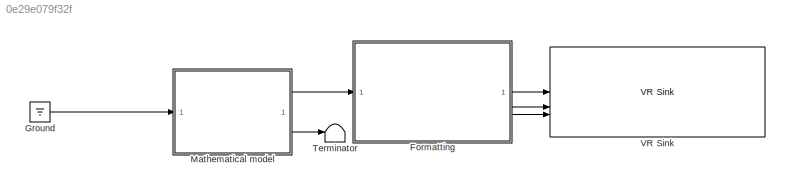
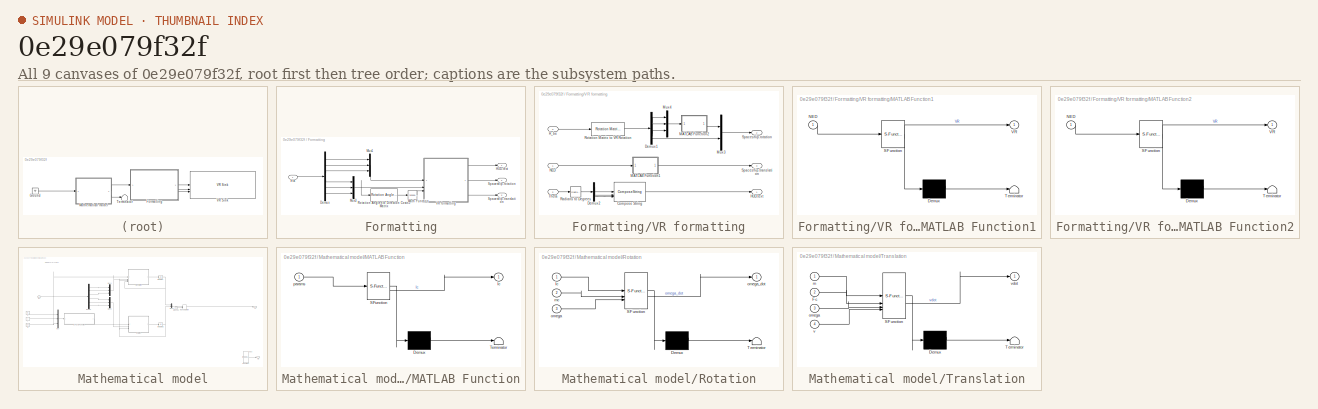
[diagram: thumbnail index - all 9 canvases of the model, root first then tree order]
MODEL slx_0e29e079f32f
KIND model
CONFIG AbsTol = auto
CONFIG EnableMultiTasking = on
CONFIG FixedStep = auto
CONFIG MaxStep = auto
CONFIG MinStep = auto
CONFIG RelTol = 1e-3
CONFIG SampleTimeConstraint = Unconstrained
CONFIG SolverName = ode45
CONFIG StartTime = 0.0
CONFIG StopTime = 30
BLOCK [SubSystem] Formatting
BLOCK [Demux] Formatting/Demux
  Outputs = 6
BLOCK [Outport] Formatting/HUD.text
BLOCK [Math] Formatting/Math Function
  Operator = transpose
BLOCK [Mux] Formatting/Mux1
  DisplayOption = bar
  Inputs = 3
BLOCK [Mux] Formatting/Mux3
  DisplayOption = bar
  Inputs = 3
BLOCK [Reference] Formatting/Rotation Angles to Direction Cosine Matrix  REF=sharedtransform/Rotation Angles to
Direction Cosine Matrix
  AttributesFormatString = Rotation Order: %<rotationOrder>
  SourceBlock = sharedtransform/Rotation Angles to\nDirection Cosine Matrix
  SourceType = Ang2DCM
BLOCK [Outport] Formatting/Spaceship.rotation
  Port = 2
BLOCK [Outport] Formatting/Spaceship.translation
  Port = 3
BLOCK [SubSystem] Formatting/VR formatting
BLOCK [ComposeString] Formatting/VR formatting/Compose String
  Format = 'Roll    : %7.2f deg\nPitch   : %7.2f deg\nYaw     : %7.2f deg'
BLOCK [Demux] Formatting/VR formatting/Demux1
BLOCK [Demux] Formatting/VR formatting/Demux2
  Outputs = 3
BLOCK [Outport] Formatting/VR formatting/HUD.text
BLOCK [SubSystem] Formatting/VR formatting/MATLAB Function1
  ErrorFcn = Stateflow.Translate.translate
  PermitHierarchicalResolution = ExplicitOnly
  SFBlockType = MATLAB Function
  TreatAsAtomicUnit = on
BLOCK [Demux] Formatting/VR formatting/MATLAB Function1/ Demux 
  Outputs = 1
BLOCK [S-Function] Formatting/VR formatting/MATLAB Function1/ SFunction 
  EnableBusSupport = on
  FunctionName = sf_sfun
  PortCounts = [1 2]
  SFcnIsStateOwnerBlock = off
  SFunctionDeploymentMode = off
  Tag = Stateflow S-Function 5
BLOCK [Terminator] Formatting/VR formatting/MATLAB Function1/ Terminator 
BLOCK [Inport] Formatting/VR formatting/MATLAB Function1/NED
BLOCK [Outport] Formatting/VR formatting/MATLAB Function1/VR
BLOCK [SubSystem] Formatting/VR formatting/MATLAB Function2
  ErrorFcn = Stateflow.Translate.translate
  PermitHierarchicalResolution = ExplicitOnly
  SFBlockType = MATLAB Function
  TreatAsAtomicUnit = on
BLOCK [Demux] Formatting/VR formatting/MATLAB Function2/ Demux 
  Outputs = 1
BLOCK [S-Function] Formatting/VR formatting/MATLAB Function2/ SFunction 
  EnableBusSupport = on
  FunctionName = sf_sfun
  PortCounts = [1 2]
  SFcnIsStateOwnerBlock = off
  SFunctionDeploymentMode = off
  Tag = Stateflow S-Function 6
BLOCK [Terminator] Formatting/VR formatting/MATLAB Function2/ Terminator 
BLOCK [Inport] Formatting/VR formatting/MATLAB Function2/NED
BLOCK [Outport] Formatting/VR formatting/MATLAB Function2/VR
BLOCK [Mux] Formatting/VR formatting/Mux3
  DisplayOption = bar
  Inputs = 2
BLOCK [Mux] Formatting/VR formatting/Mux4
  DisplayOption = bar
  Inputs = 3
BLOCK [Inport] Formatting/VR formatting/NED
BLOCK [Inport] Formatting/VR formatting/R_be
  Port = 3
BLOCK [Reference] Formatting/VR formatting/Radians to Degrees  REF=simulink_extras/Transformations/Radians
to Degrees
  SourceBlock = simulink_extras/Transformations/Radians\nto Degrees
  SourceType = RadiansToDegrees
BLOCK [Reference] Formatting/VR formatting/Rotation Matrix to VR Rotation  REF=vrlib/Utilities/Rotation Matrix
to VR Rotation
  SourceBlock = vrlib/Utilities/Rotation Matrix\nto VR Rotation
  SourceType = Rotation Matrix to VR Rotation
BLOCK [Outport] Formatting/VR formatting/Spaceship.rotation
  Port = 2
BLOCK [Outport] Formatting/VR formatting/Spaceship.translation
  Port = 3
BLOCK [Inport] Formatting/VR formatting/Theta
  Port = 2
BLOCK [Inport] Formatting/eta
BLOCK [Ground] Ground
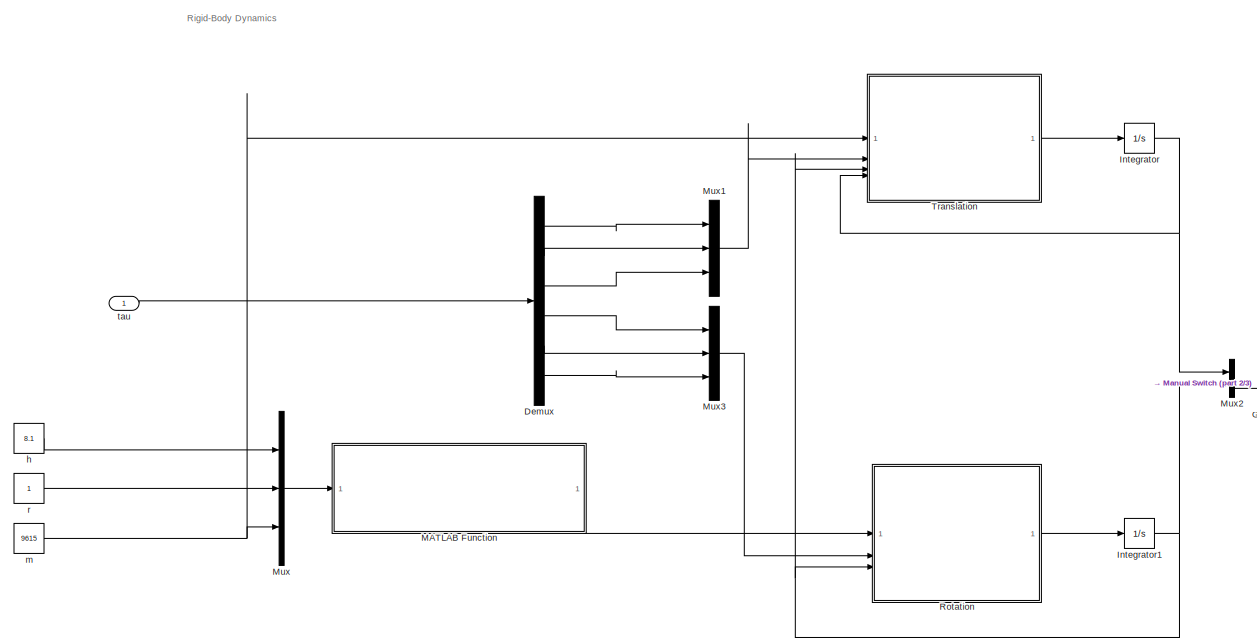
[diagram: Mathematical model - part 1/3, middle left region]
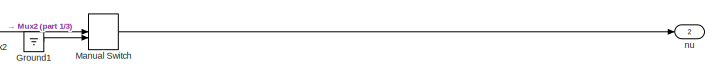
[diagram: Mathematical model - part 2/3, middle right region]
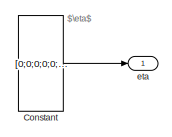
[diagram: Mathematical model - part 3/3, bottom right region]
BLOCK [SubSystem] Mathematical model
BLOCK [Constant] Mathematical model/Constant
  Value = [0;0;0;0;0;0]
  VectorParams1D = off
BLOCK [Demux] Mathematical model/Demux
  Outputs = 6
BLOCK [Ground] Mathematical model/Ground1
BLOCK [Integrator] Mathematical model/Integrator
  InitialCondition = [1,1,1]
BLOCK [Integrator] Mathematical model/Integrator1
  InitialCondition = [1,1,1]
BLOCK [SubSystem] Mathematical model/MATLAB Function
  ErrorFcn = Stateflow.Translate.translate
  PermitHierarchicalResolution = ExplicitOnly
  SFBlockType = MATLAB Function
  TreatAsAtomicUnit = on
BLOCK [Demux] Mathematical model/MATLAB Function/ Demux 
  Outputs = 1
BLOCK [S-Function] Mathematical model/MATLAB Function/ SFunction 
  EnableBusSupport = on
  FunctionName = sf_sfun
  PortCounts = [1 2]
  SFcnIsStateOwnerBlock = off
  SFunctionDeploymentMode = off
  Tag = Stateflow S-Function 2
BLOCK [Terminator] Mathematical model/MATLAB Function/ Terminator 
BLOCK [Outport] Mathematical model/MATLAB Function/Ic
BLOCK [Inport] Mathematical model/MATLAB Function/params
BLOCK [ManualSwitch] Mathematical model/Manual Switch
BLOCK [Mux] Mathematical model/Mux
  DisplayOption = bar
  Inputs = 3
BLOCK [Mux] Mathematical model/Mux1
  DisplayOption = bar
  Inputs = 3
BLOCK [Mux] Mathematical model/Mux2
  DisplayOption = bar
  Inputs = 2
BLOCK [Mux] Mathematical model/Mux3
  DisplayOption = bar
  Inputs = 3
BLOCK [SubSystem] Mathematical model/Rotation
  ErrorFcn = Stateflow.Translate.translate
  PermitHierarchicalResolution = ExplicitOnly
  SFBlockType = MATLAB Function
  TreatAsAtomicUnit = on
BLOCK [Demux] Mathematical model/Rotation/ Demux 
  Outputs = 1
BLOCK [S-Function] Mathematical model/Rotation/ SFunction 
  EnableBusSupport = on
  FunctionName = sf_sfun
  PortCounts = [3 2]
  SFcnIsStateOwnerBlock = off
  SFunctionDeploymentMode = off
  Tag = Stateflow S-Function 1
BLOCK [Terminator] Mathematical model/Rotation/ Terminator 
BLOCK [Inport] Mathematical model/Rotation/Ic
BLOCK [Inport] Mathematical model/Rotation/mc
  Port = 2
BLOCK [Inport] Mathematical model/Rotation/omega
  Port = 3
BLOCK [Outport] Mathematical model/Rotation/omega_dot
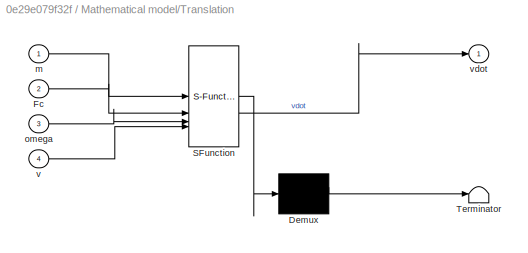
BLOCK [SubSystem] Mathematical model/Translation
  ErrorFcn = Stateflow.Translate.translate
  PermitHierarchicalResolution = ExplicitOnly
  SFBlockType = MATLAB Function
  TreatAsAtomicUnit = on
BLOCK [Demux] Mathematical model/Translation/ Demux 
  Outputs = 1
BLOCK [S-Function] Mathematical model/Translation/ SFunction 
  EnableBusSupport = on
  FunctionName = sf_sfun
  PortCounts = [4 2]
  SFcnIsStateOwnerBlock = off
  SFunctionDeploymentMode = off
  Tag = Stateflow S-Function 3
BLOCK [Terminator] Mathematical model/Translation/ Terminator 
BLOCK [Inport] Mathematical model/Translation/Fc
  Port = 2
BLOCK [Inport] Mathematical model/Translation/m
BLOCK [Inport] Mathematical model/Translation/omega
  Port = 3
BLOCK [Inport] Mathematical model/Translation/v
  Port = 4
BLOCK [Outport] Mathematical model/Translation/vdot
BLOCK [Outport] Mathematical model/eta
BLOCK [Constant] Mathematical model/h
  Value = 8.1
BLOCK [Constant] Mathematical model/m
  Value = 9615
BLOCK [Outport] Mathematical model/nu
  Port = 2
BLOCK [Constant] Mathematical model/r
BLOCK [Inport] Mathematical model/tau
BLOCK [Terminator] Terminator
BLOCK [Reference] VR Sink  REF=vrlib/VR Sink
  InstantiateOnLoad = on
  SourceBlock = vrlib/VR Sink
  SourceType = Virtual Reality Sink
ANNOTATION Mathematical model: $\eta$
ANNOTATION Mathematical model: Rigid-Body Dynamics
LINE Formatting/Demux:1 -> Formatting/Mux1:1
LINE Formatting/Demux:2 -> Formatting/Mux1:2
LINE Formatting/Demux:3 -> Formatting/Mux1:3
LINE Formatting/Demux:4 -> Formatting/Mux3:1
LINE Formatting/Demux:5 -> Formatting/Mux3:2
LINE Formatting/Demux:6 -> Formatting/Mux3:3
LINE Formatting/Math Function:1 -> Formatting/VR formatting:3
LINE Formatting/Mux1:1 -> Formatting/VR formatting:1
NET Formatting/Mux3:1 -> Formatting/Rotation Angles to Direction Cosine Matrix:1, Formatting/VR formatting:2
LINE Formatting/Rotation Angles to Direction Cosine Matrix:1 -> Formatting/Math Function:1
LINE Formatting/VR formatting/Compose String:1 -> Formatting/VR formatting/HUD.text:1
LINE Formatting/VR formatting/Demux1:1 -> Formatting/VR formatting/Mux4:1
LINE Formatting/VR formatting/Demux1:2 -> Formatting/VR formatting/Mux4:2
LINE Formatting/VR formatting/Demux1:3 -> Formatting/VR formatting/Mux4:3
LINE Formatting/VR formatting/Demux1:4 -> Formatting/VR formatting/Mux3:2
LINE Formatting/VR formatting/Demux2:1 -> Formatting/VR formatting/Compose String:1
LINE Formatting/VR formatting/Demux2:2 -> Formatting/VR formatting/Compose String:2
LINE Formatting/VR formatting/Demux2:3 -> Formatting/VR formatting/Compose String:3
LINE Formatting/VR formatting/MATLAB Function1:1 -> Formatting/VR formatting/Spaceship.translation:1
LINE Formatting/VR formatting/MATLAB Function2:1 -> Formatting/VR formatting/Mux3:1
LINE Formatting/VR formatting/Mux3:1 -> Formatting/VR formatting/Spaceship.rotation:1
LINE Formatting/VR formatting/Mux4:1 -> Formatting/VR formatting/MATLAB Function2:1
LINE Formatting/VR formatting/NED:1 -> Formatting/VR formatting/MATLAB Function1:1
LINE Formatting/VR formatting/R_be:1 -> Formatting/VR formatting/Rotation Matrix to VR Rotation:1
LINE Formatting/VR formatting/Radians to Degrees:1 -> Formatting/VR formatting/Demux2:1
LINE Formatting/VR formatting/Rotation Matrix to VR Rotation:1 -> Formatting/VR formatting/Demux1:1
LINE Formatting/VR formatting/Theta:1 -> Formatting/VR formatting/Radians to Degrees:1
LINE Formatting/VR formatting:1 -> Formatting/HUD.text:1
LINE Formatting/VR formatting:2 -> Formatting/Spaceship.rotation:1
LINE Formatting/VR formatting:3 -> Formatting/Spaceship.translation:1
LINE Formatting/eta:1 -> Formatting/Demux:1
LINE Formatting:1 -> VR Sink:1
LINE Formatting:2 -> VR Sink:2
LINE Formatting:3 -> VR Sink:3
LINE Ground:1 -> Mathematical model:1
LINE Mathematical model/Constant:1 -> Mathematical model/eta:1
LINE Mathematical model/Demux:1 -> Mathematical model/Mux1:1
LINE Mathematical model/Demux:2 -> Mathematical model/Mux1:2
LINE Mathematical model/Demux:3 -> Mathematical model/Mux1:3
LINE Mathematical model/Demux:4 -> Mathematical model/Mux3:1
LINE Mathematical model/Demux:5 -> Mathematical model/Mux3:2
LINE Mathematical model/Demux:6 -> Mathematical model/Mux3:3
LINE Mathematical model/Ground1:1 -> Mathematical model/Manual Switch:2
NET Mathematical model/Integrator1:1 -> Mathematical model/Mux2:2, Mathematical model/Rotation:3, Mathematical model/Translation:3
NET Mathematical model/Integrator:1 -> Mathematical model/Mux2:1, Mathematical model/Translation:4
LINE Mathematical model/MATLAB Function:1 -> Mathematical model/Rotation:1
LINE Mathematical model/Manual Switch:1 -> Mathematical model/nu:1
LINE Mathematical model/Mux1:1 -> Mathematical model/Translation:2
LINE Mathematical model/Mux2:1 -> Mathematical model/Manual Switch:1
LINE Mathematical model/Mux3:1 -> Mathematical model/Rotation:2
LINE Mathematical model/Mux:1 -> Mathematical model/MATLAB Function:1
LINE Mathematical model/Rotation:1 -> Mathematical model/Integrator1:1
LINE Mathematical model/Translation:1 -> Mathematical model/Integrator:1
LINE Mathematical model/h:1 -> Mathematical model/Mux:1
NET Mathematical model/m:1 -> Mathematical model/Mux:3, Mathematical model/Translation:1
LINE Mathematical model/r:1 -> Mathematical model/Mux:2
LINE Mathematical model/tau:1 -> Mathematical model/Demux:1
LINE Mathematical model:1 -> Formatting:1
LINE Mathematical model:2 -> Terminator:1
note: NET lines group one-source signal fan-out (src -> all destinations, sorted); 1:1 wires keep LINE
CHART Mathematical model/Rotation states=1 transitions=1
  STATE_LABEL 'eML_blk_kernel()'
  STATE_LABEL 'SCRIPT:\nfunction omega_dot = rotational_motion(Ic, mc, omega)\n\nomega_dot = inv(Ic)*(mc - cross(omega, Ic*omega));'
CHART Mathematical model/MATLAB Function states=1 transitions=1
  STATE_LABEL 'eML_blk_kernel()'
  STATE_LABEL 'SCRIPT:\nfunction Ic = cylinder_inertia_tensor(params)\n\nh = params(1)\nr = params(2)\nm = params(3)\n\nIc = [1/12*m*(3*r^2 + h^2) 0 0;\n               0 1/12*m*(3*r^2 + h^2) 0;\n               0 0 1/2*m*r^2];'
CHART Mathematical model/Translation states=1 transitions=1
  STATE_LABEL 'eML_blk_kernel()'
  STATE_LABEL 'SCRIPT:\nfunction vdot = translational_motion(m, Fc, omega, v)\n\nvdot = 1/m * (Fc - cross(omega, m*v));'
CHART Formatting/VR formatting/MATLAB Function1 states=1 transitions=1
  STATE_LABEL 'eML_blk_kernel()'
  STATE_LABEL 'SCRIPT:\nfunction VR = NED2VR(NED)\n\nx = NED(1); % north\ny = NED(2); % east \nz = NED(3); % down\n\nVR = [ -y ; -z ; x ];\n'
CHART Formatting/VR formatting/MATLAB Function2 states=1 transitions=1
  STATE_LABEL 'eML_blk_kernel()'
  STATE_LABEL 'SCRIPT:\nfunction VR = NED2VR(NED)\n\nx = NED(1); % north\ny = NED(2); % east \nz = NED(3); % down\n\nVR = [ -y ; -z ; x ];\n'
CHART  states=0 transitions=0
CHART  states=0 transitions=0
CHART  states=0 transitions=0
CHART  states=0 transitions=0
CHART  states=0 transitions=0
